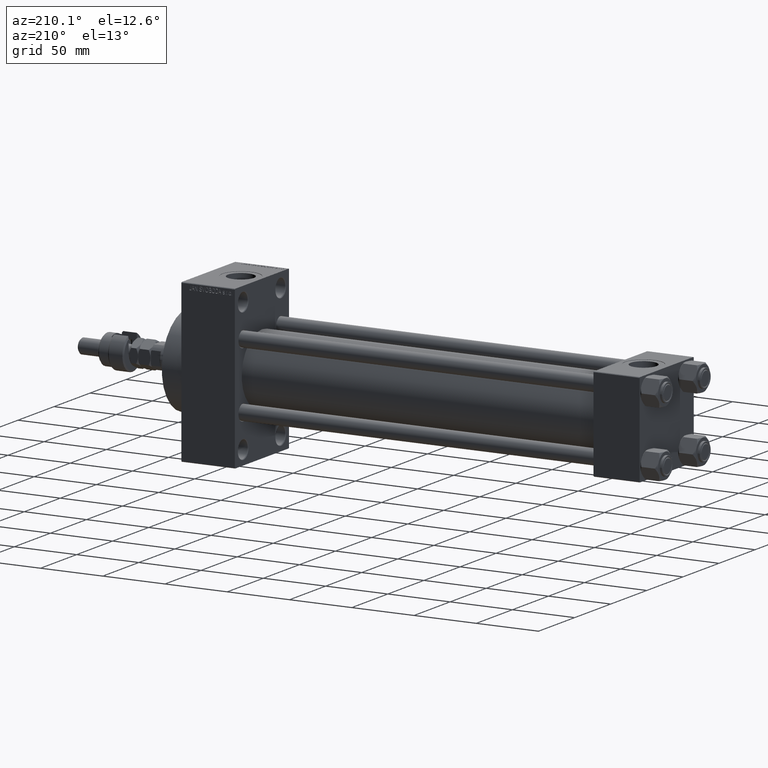
[diagram: clean part render]
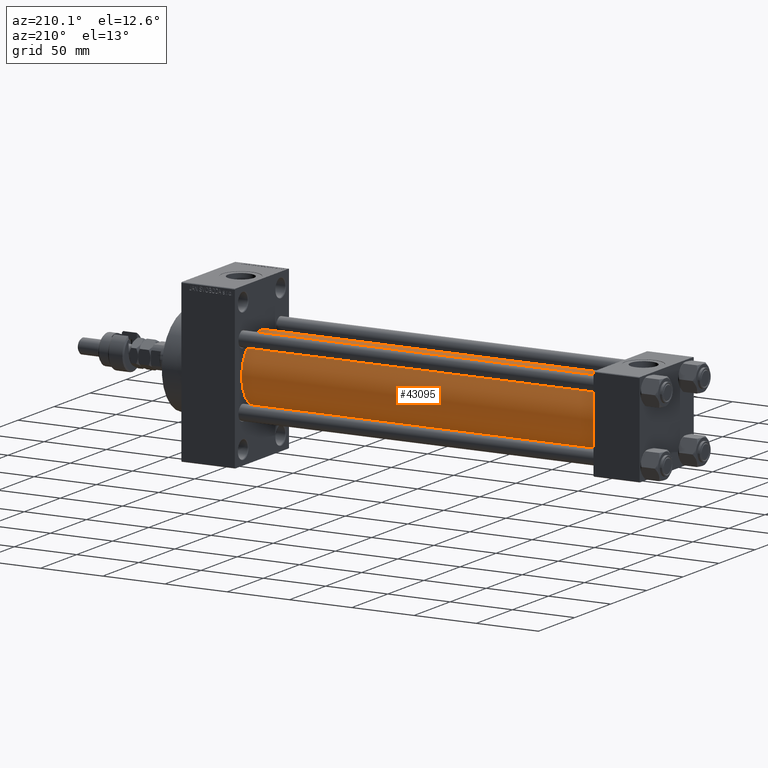
[diagram: same view with one face highlighted and labeled with its STEP entity id]
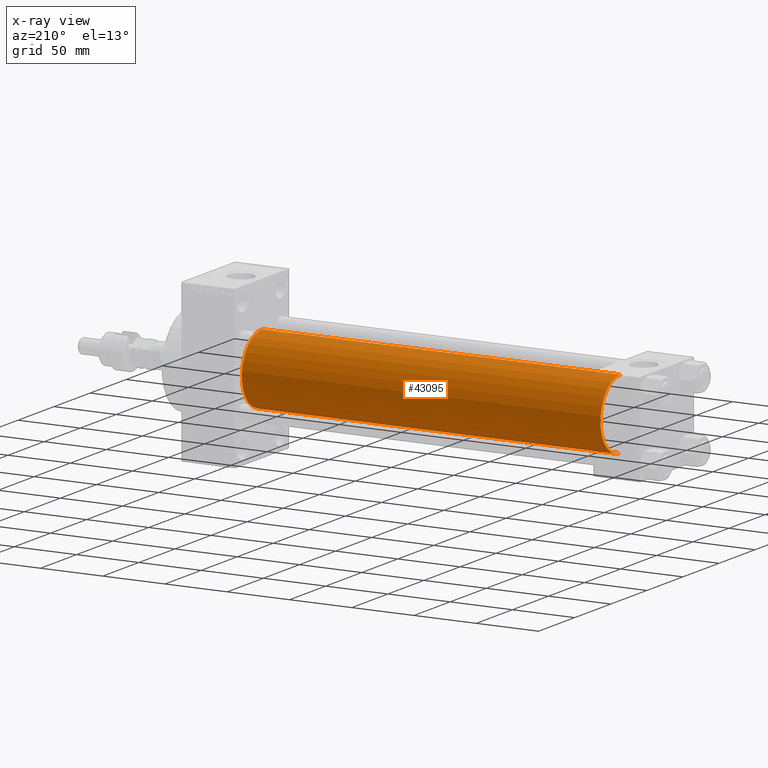
[diagram: x-ray of the same camera — body ghosted, the highlighted face saturated]
A machine part, auxiliary view. The second image highlights one B-rep face of the part: STEP entity #43095.
The next image is the same camera in x-ray: the body ghosted, the highlighted face saturated — about 0% of this face is hidden behind the body in this view.
In plain terms, the highlighted cylindrical surface (partial cylindrical patch) has radius 28 mm, axis along (-1, -0, -0).
Its self-contained STEP definition (entity closure, byte-faithful):
#685 = DIRECTION ( 'NONE',  ( -1.000000000000000000, -0.000000000000000000, -0.000000000000000000 ) ) ;
#1302 = DIRECTION ( 'NONE',  ( 0.000000000000000000, 0.000000000000000000, -1.000000000000000000 ) ) ;
#2931 = CARTESIAN_POINT ( 'NONE',  ( 324.9999999999999432, 8.269258236473784371E-16, -28.00000000000000000 ) ) ;
#3903 = EDGE_CURVE ( 'NONE', #26968, #18922, #20585, .T. ) ;
#4563 = EDGE_CURVE ( 'NONE', #26968, #36621, #20875, .T. ) ;
#5553 = FACE_OUTER_BOUND ( 'NONE', #6977, .T. ) ;
#6205 = ORIENTED_EDGE ( 'NONE', *, *, #10348, .F. ) ;
#6977 = EDGE_LOOP ( 'NONE', ( #10394, #14105, #14993, #6205 ) ) ;
#7476 = DIRECTION ( 'NONE',  ( 1.000000000000000000, -0.000000000000000000, 0.000000000000000000 ) ) ;
#7498 = VERTEX_POINT ( 'NONE', #30866 ) ;
#9293 = VECTOR ( 'NONE', #685, 1000.000000000000000 ) ;
#10348 = EDGE_CURVE ( 'NONE', #18922, #7498, #42242, .T. ) ;
#10394 = ORIENTED_EDGE ( 'NONE', *, *, #3903, .F. ) ;
#13126 = CYLINDRICAL_SURFACE ( 'NONE', #41944, 28.00000000000000000 ) ;
#14105 = ORIENTED_EDGE ( 'NONE', *, *, #4563, .T. ) ;
#14993 = ORIENTED_EDGE ( 'NONE', *, *, #32573, .T. ) ;
#16709 = DIRECTION ( 'NONE',  ( 1.000000000000000000, 0.000000000000000000, 0.000000000000000000 ) ) ;
#18922 = VERTEX_POINT ( 'NONE', #49830 ) ;
#19542 = AXIS2_PLACEMENT_3D ( 'NONE', #39328, #7476, #27688 ) ;
#19751 = AXIS2_PLACEMENT_3D ( 'NONE', #20254, #16709, #1302 ) ;
#20254 = CARTESIAN_POINT ( 'NONE',  ( 324.9999999999999432, -2.602085213965210642E-15, 0.000000000000000000 ) ) ;
#20585 = CIRCLE ( 'NONE', #19751, 28.00000000000000000 ) ;
#20625 = CARTESIAN_POINT ( 'NONE',  ( 324.9999999999999432, 8.269258236473784371E-16, -28.00000000000000000 ) ) ;
#20875 = LINE ( 'NONE', #20625, #9293 ) ;
#26546 = DIRECTION ( 'NONE',  ( -1.000000000000000000, -0.000000000000000000, -0.000000000000000000 ) ) ;
#26803 = CARTESIAN_POINT ( 'NONE',  ( 324.9999999999999432, -2.602085213965210642E-15, 28.00000000000000000 ) ) ;
#26968 = VERTEX_POINT ( 'NONE', #2931 ) ;
#27688 = DIRECTION ( 'NONE',  ( 0.000000000000000000, 0.000000000000000000, 1.000000000000000000 ) ) ;
#28560 = DIRECTION ( 'NONE',  ( 0.000000000000000000, 0.000000000000000000, 1.000000000000000000 ) ) ;
#29767 = CARTESIAN_POINT ( 'NONE',  ( 36.99999999999997868, 8.269258236473784371E-16, -28.00000000000000000 ) ) ;
#30077 = CIRCLE ( 'NONE', #19542, 28.00000000000000000 ) ;
#30866 = CARTESIAN_POINT ( 'NONE',  ( 36.99999999999997868, -2.602085213965210642E-15, 28.00000000000000000 ) ) ;
#32573 = EDGE_CURVE ( 'NONE', #36621, #7498, #30077, .T. ) ;
#36621 = VERTEX_POINT ( 'NONE', #29767 ) ;
#39328 = CARTESIAN_POINT ( 'NONE',  ( 36.99999999999997868, -2.602085213965210642E-15, 0.000000000000000000 ) ) ;
#41944 = AXIS2_PLACEMENT_3D ( 'NONE', #46794, #47056, #28560 ) ;
#42242 = LINE ( 'NONE', #26803, #45826 ) ;
#43095 = ADVANCED_FACE ( 'NONE', ( #5553 ), #13126, .T. ) ;
#45826 = VECTOR ( 'NONE', #26546, 1000.000000000000000 ) ;
#46794 = CARTESIAN_POINT ( 'NONE',  ( 324.9999999999999432, -2.602085213965210642E-15, 0.000000000000000000 ) ) ;
#47056 = DIRECTION ( 'NONE',  ( -1.000000000000000000, -0.000000000000000000, -0.000000000000000000 ) ) ;
#49830 = CARTESIAN_POINT ( 'NONE',  ( 324.9999999999999432, -2.602085213965210642E-15, 28.00000000000000000 ) ) ;